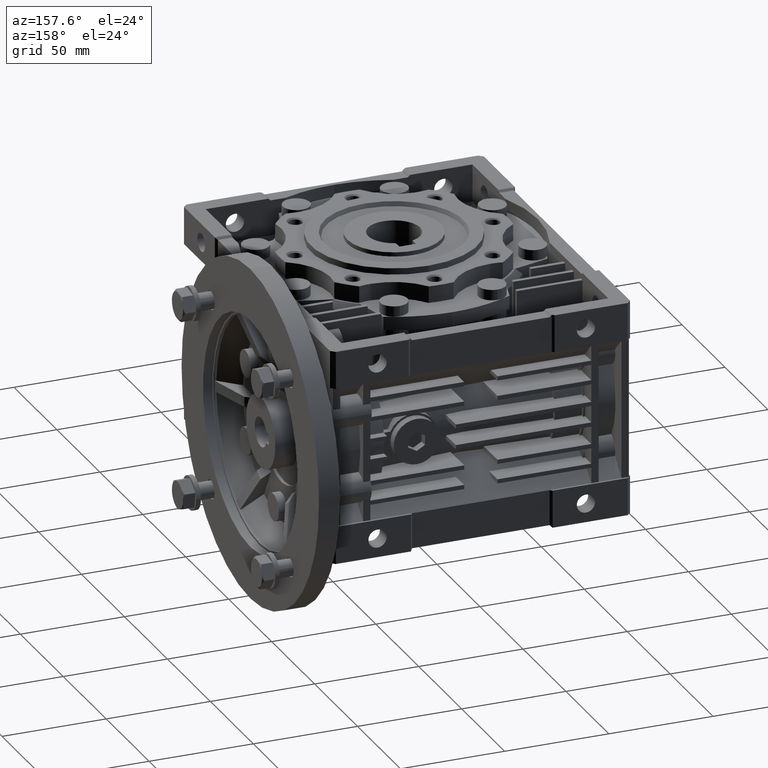
[diagram: clean part render]
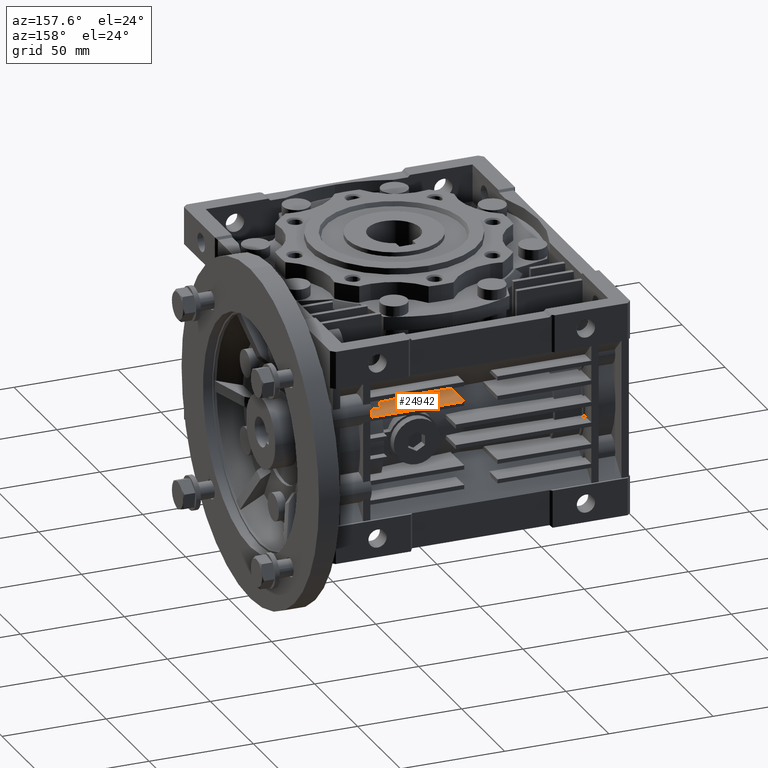
[diagram: same view with one face highlighted and labeled with its STEP entity id]
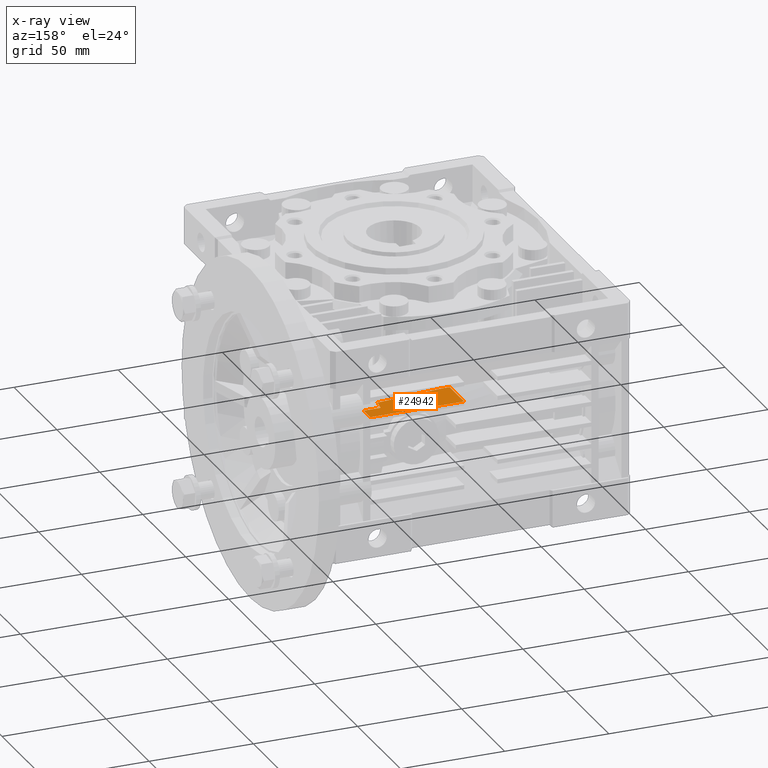
[diagram: x-ray of the same camera — body ghosted, the highlighted face saturated]
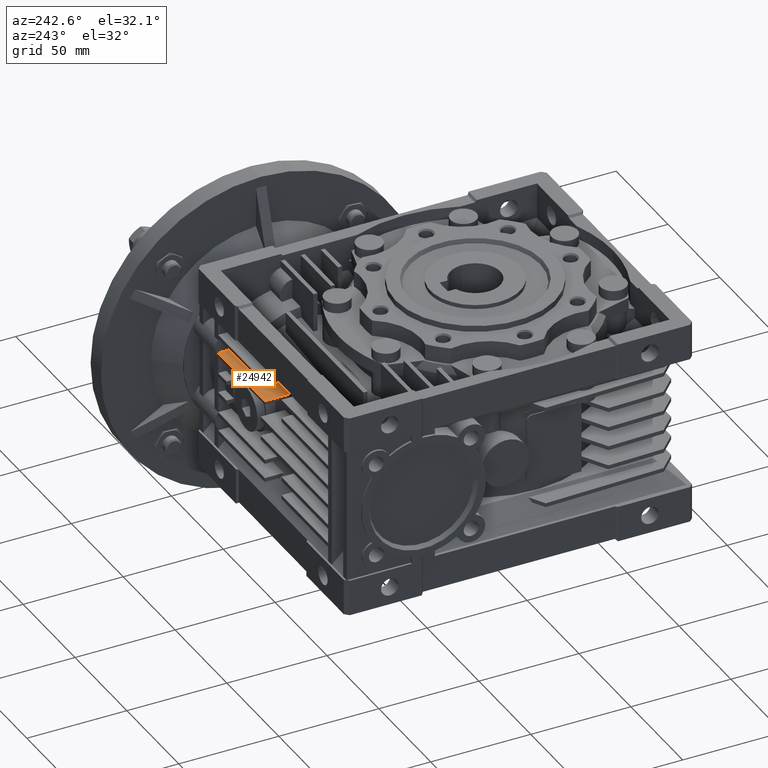
[diagram: same view with one face highlighted and labeled with its STEP entity id]
A machine part, auxiliary view. The second image highlights one B-rep face of the part: STEP entity #24942.
The next image is the same camera in x-ray: the body ghosted, the highlighted face saturated — about 0% of this face is hidden behind the body in this view.
A second angle (auxiliary view) of the same face is appended — the face is thin or edge-on in the first view.
In plain terms, the highlighted planar face has unit normal (0, 0, -1).
Its self-contained STEP definition (entity closure, byte-faithful):
#411 = EDGE_CURVE ( 'NONE', #45324, #15705, #5590, .T. ) ;
#547 = ORIENTED_EDGE ( 'NONE', *, *, #18839, .F. ) ;
#741 = LINE ( 'NONE', #19506, #15949 ) ;
#1063 = CARTESIAN_POINT ( 'NONE',  ( 53.00000000000000000, 93.29851481508619315, 16.50000000000000000 ) ) ;
#2098 = VECTOR ( 'NONE', #7023, 1000.000000000000000 ) ;
#2779 = VERTEX_POINT ( 'NONE', #13660 ) ;
#4295 = CARTESIAN_POINT ( 'NONE',  ( 78.50000000000000000, 93.29851481508619315, 16.50000000000000000 ) ) ;
#5590 = LINE ( 'NONE', #12628, #36112 ) ;
#7023 = DIRECTION ( 'NONE',  ( 1.000000000000000000, 0.000000000000000000, 0.000000000000000000 ) ) ;
#7040 = CARTESIAN_POINT ( 'NONE',  ( 22.33426910639487417, 85.18373375776756973, 16.50000000000000000 ) ) ;
#7798 = EDGE_CURVE ( 'NONE', #42640, #43990, #12326, .T. ) ;
#7806 = CARTESIAN_POINT ( 'NONE',  ( -71.00000000000000000, 84.00000000000000000, 16.50000000000000000 ) ) ;
#10197 = ORIENTED_EDGE ( 'NONE', *, *, #7798, .F. ) ;
#10513 = CARTESIAN_POINT ( 'NONE',  ( 44.35031909136615269, 89.40378744927770072, 16.50000000000000000 ) ) ;
#10943 = FACE_OUTER_BOUND ( 'NONE', #32128, .T. ) ;
#12326 = LINE ( 'NONE', #4295, #13320 ) ;
#12628 = CARTESIAN_POINT ( 'NONE',  ( 8.000000000000000000, 51.00000000000000000, 16.50000000000000000 ) ) ;
#13320 = VECTOR ( 'NONE', #15259, 1000.000000000000000 ) ;
#13597 = LINE ( 'NONE', #28475, #2098 ) ;
#13611 = CARTESIAN_POINT ( 'NONE',  ( 11.48655832003155020, 84.00000000099208819, 16.50000000000000000 ) ) ;
#13660 = CARTESIAN_POINT ( 'NONE',  ( 11.48655832003155020, 84.00000000099208819, 16.50000000000000000 ) ) ;
#13923 = CARTESIAN_POINT ( 'NONE',  ( 44.04000000000000625, 87.45403852127498112, 16.50000000000000000 ) ) ;
#13944 = CARTESIAN_POINT ( 'NONE',  ( 8.000000000000000000, 101.0000000000000000, 16.50000000000000000 ) ) ;
#14357 = DIRECTION ( 'NONE',  ( 0.000000000000000000, -1.000000000000000000, 0.000000000000000000 ) ) ;
#14650 = EDGE_CURVE ( 'NONE', #45324, #2779, #24776, .T. ) ;
#14879 = DIRECTION ( 'NONE',  ( 1.000000000000000000, 0.000000000000000000, 0.000000000000000000 ) ) ;
#15259 = DIRECTION ( 'NONE',  ( -1.000000000000000000, 0.000000000000000000, 0.000000000000000000 ) ) ;
#15705 = VERTEX_POINT ( 'NONE', #13944 ) ;
#15949 = VECTOR ( 'NONE', #30219, 1000.000000000000000 ) ;
#16305 = DIRECTION ( 'NONE',  ( 0.000000000000000000, 1.000000000000000000, 0.000000000000000000 ) ) ;
#16475 = VECTOR ( 'NONE', #14879, 1000.000000000000000 ) ;
#18839 = EDGE_CURVE ( 'NONE', #41010, #2779, #44927, .T. ) ;
#19506 = CARTESIAN_POINT ( 'NONE',  ( 53.00000000000000000, 51.00000000000000000, 16.50000000000000000 ) ) ;
#20525 = B_SPLINE_CURVE_WITH_KNOTS ( 'NONE', 3,
 ( #35913, #42944, #10513, #13923 ),
 .UNSPECIFIED., .F., .F.,
 ( 4, 4 ),
 ( 0.000000000000000000, 0.005922795214163763776 ),
 .UNSPECIFIED. ) ;
#24776 = LINE ( 'NONE', #7806, #16475 ) ;
#24859 = CARTESIAN_POINT ( 'NONE',  ( 33.18589997882527598, 86.33052169152784927, 16.50000000000000000 ) ) ;
#24942 = ADVANCED_FACE ( 'NONE', ( #10943 ), #43640, .F. ) ;
#25562 = CARTESIAN_POINT ( 'NONE',  ( 44.04000000000000625, 87.45403852127498112, 16.50000000000000000 ) ) ;
#25735 = EDGE_CURVE ( 'NONE', #15705, #42347, #13597, .T. ) ;
#25887 = ORIENTED_EDGE ( 'NONE', *, *, #37822, .T. ) ;
#26897 = AXIS2_PLACEMENT_3D ( 'NONE', #44111, #47727, #14357 ) ;
#28475 = CARTESIAN_POINT ( 'NONE',  ( 53.00000000000000000, 101.0000000000000000, 16.50000000000000000 ) ) ;
#29274 = CARTESIAN_POINT ( 'NONE',  ( 44.04000000000000625, 87.45403852127498112, 16.50000000000000000 ) ) ;
#30219 = DIRECTION ( 'NONE',  ( 0.000000000000000000, 1.000000000000000000, 0.000000000000000000 ) ) ;
#32128 = EDGE_LOOP ( 'NONE', ( #42172, #10197, #25887, #33959, #37135, #47439, #547 ) ) ;
#33093 = CARTESIAN_POINT ( 'NONE',  ( 8.000000000000000000, 84.00000000000000000, 16.50000000000000000 ) ) ;
#33959 = ORIENTED_EDGE ( 'NONE', *, *, #25735, .F. ) ;
#35913 = CARTESIAN_POINT ( 'NONE',  ( 45.00000000000000000, 93.29851481508619315, 16.50000000000000000 ) ) ;
#36112 = VECTOR ( 'NONE', #16305, 1000.000000000000000 ) ;
#37135 = ORIENTED_EDGE ( 'NONE', *, *, #411, .F. ) ;
#37822 = EDGE_CURVE ( 'NONE', #42640, #42347, #741, .T. ) ;
#41010 = VERTEX_POINT ( 'NONE', #29274 ) ;
#42172 = ORIENTED_EDGE ( 'NONE', *, *, #47799, .F. ) ;
#42347 = VERTEX_POINT ( 'NONE', #43280 ) ;
#42640 = VERTEX_POINT ( 'NONE', #1063 ) ;
#42944 = CARTESIAN_POINT ( 'NONE',  ( 44.67173463687294088, 91.35171369968882971, 16.50000000000000000 ) ) ;
#43280 = CARTESIAN_POINT ( 'NONE',  ( 53.00000000000000000, 101.0000000000000000, 16.50000000000000000 ) ) ;
#43640 = PLANE ( 'NONE',  #26897 ) ;
#43990 = VERTEX_POINT ( 'NONE', #47175 ) ;
#44111 = CARTESIAN_POINT ( 'NONE',  ( 53.00000000000000000, 51.00000000000000000, 16.50000000000000000 ) ) ;
#44927 = B_SPLINE_CURVE_WITH_KNOTS ( 'NONE', 3,
 ( #25562, #24859, #7040, #13611 ),
 .UNSPECIFIED., .F., .F.,
 ( 4, 4 ),
 ( 6.938893903907228378E-18, 0.03273617184866598612 ),
 .UNSPECIFIED. ) ;
#45324 = VERTEX_POINT ( 'NONE', #33093 ) ;
#47175 = CARTESIAN_POINT ( 'NONE',  ( 45.00000000000000000, 93.29851481508619315, 16.50000000000000000 ) ) ;
#47439 = ORIENTED_EDGE ( 'NONE', *, *, #14650, .T. ) ;
#47727 = DIRECTION ( 'NONE',  ( 0.000000000000000000, 0.000000000000000000, -1.000000000000000000 ) ) ;
#47799 = EDGE_CURVE ( 'NONE', #43990, #41010, #20525, .T. ) ;